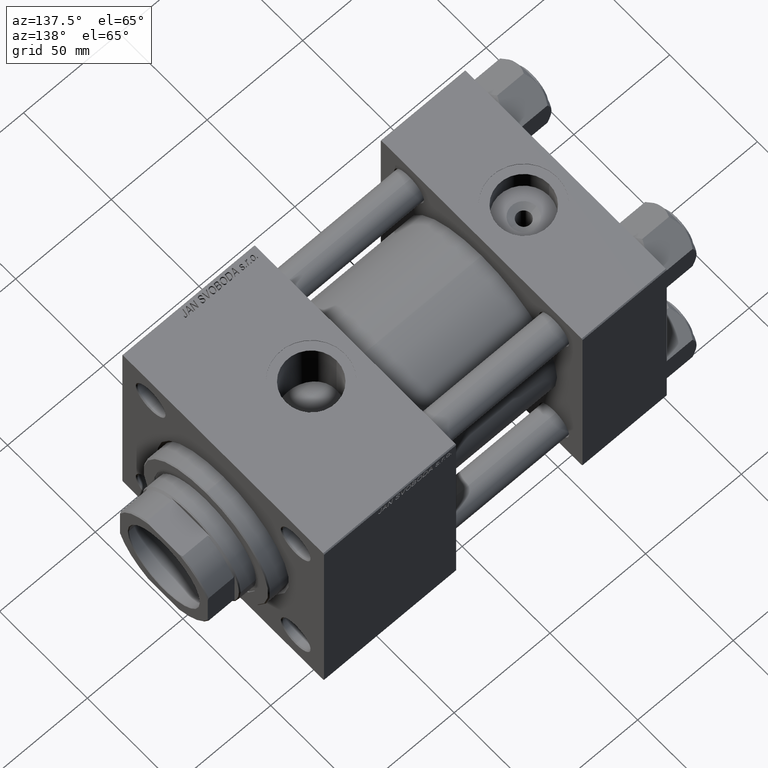
[diagram: clean part render]
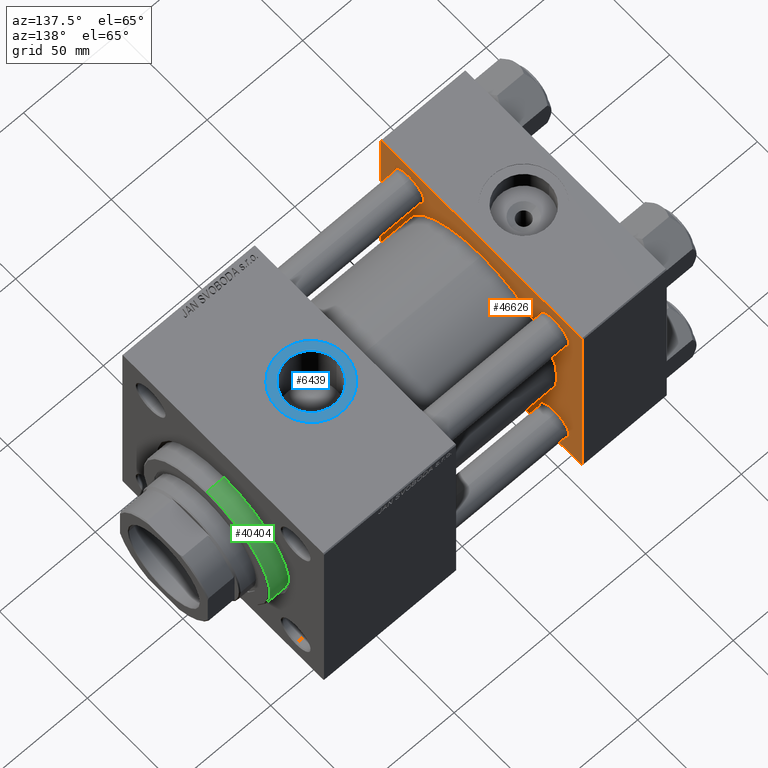
[diagram: same view with three faces highlighted in distinct colors, each labeled with its STEP entity id]
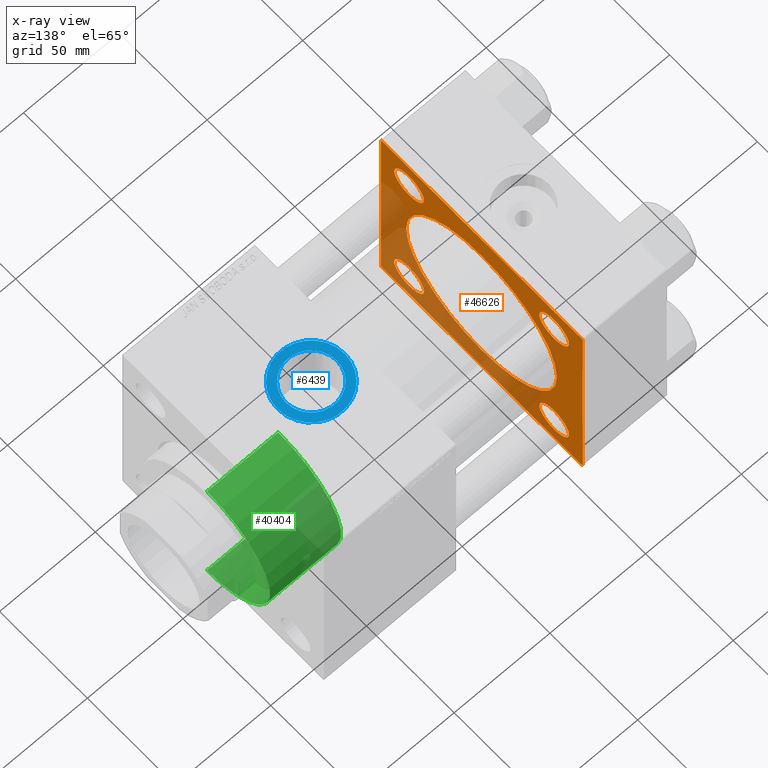
[diagram: x-ray of the same camera — body ghosted, the three highlighted faces saturated]
A machine part, auxiliary view with three faces highlighted in distinct colors.
The next image is the same camera in x-ray (body ghosted, the three faces saturated) — at least one of them is partly hidden behind the body in this view.
Their STEP definitions:

[orange] entity #46626 — the highlighted planar face has unit normal (-1, 0, 0).
#864 = CARTESIAN_POINT ( 'NONE',  ( 44.00000000000000000, 41.34999999999999432, 41.35000000000000142 ) ) ;
#981 = DIRECTION ( 'NONE',  ( -0.000000000000000000, -0.7071067811865376918, -0.7071067811865573427 ) ) ;
#1728 = EDGE_CURVE ( 'NONE', #43489, #13084, #11116, .T. ) ;
#2007 = CARTESIAN_POINT ( 'NONE',  ( 44.00000000000000000, -41.34999999999998721, 41.35000000000000853 ) ) ;
#2047 = EDGE_CURVE ( 'NONE', #15584, #39026, #29131, .T. ) ;
#2173 = CARTESIAN_POINT ( 'NONE',  ( 44.00000000000000000, -2.602085213965210642E-15, 0.000000000000000000 ) ) ;
#2218 = CARTESIAN_POINT ( 'NONE',  ( 44.00000000000000000, 57.00000000000000711, 57.50000000000000711 ) ) ;
#2276 = CARTESIAN_POINT ( 'NONE',  ( 44.00000000000000000, 41.34999999999999432, -49.85000000000003695 ) ) ;
#2841 = CIRCLE ( 'NONE', #23292, 8.500000000000035527 ) ;
#3265 = VERTEX_POINT ( 'NONE', #5364 ) ;
#3810 = CARTESIAN_POINT ( 'NONE',  ( 44.00000000000000000, -57.00000000000000711, -57.50000000000000711 ) ) ;
#4451 = AXIS2_PLACEMENT_3D ( 'NONE', #35761, #11442, #27077 ) ;
#4601 = AXIS2_PLACEMENT_3D ( 'NONE', #16011, #37011, #17047 ) ;
#4904 = VERTEX_POINT ( 'NONE', #9020 ) ;
#5169 = FACE_BOUND ( 'NONE', #38016, .T. ) ;
#5364 = CARTESIAN_POINT ( 'NONE',  ( 44.00000000000000000, -57.00000000000000711, -57.50000000000000711 ) ) ;
#5370 = DIRECTION ( 'NONE',  ( 0.000000000000000000, 0.000000000000000000, 1.000000000000000000 ) ) ;
#5606 = VECTOR ( 'NONE', #36279, 1000.000000000000000 ) ;
#5610 = LINE ( 'NONE', #6606, #38942 ) ;
#6256 = EDGE_CURVE ( 'NONE', #39026, #15584, #14413, .T. ) ;
#6276 = CARTESIAN_POINT ( 'NONE',  ( 44.00000000000000000, -2.602085213965210642E-15, 43.00000000000000000 ) ) ;
#6331 = ORIENTED_EDGE ( 'NONE', *, *, #21492, .T. ) ;
#6519 = CARTESIAN_POINT ( 'NONE',  ( 44.00000000000000000, -2.602085213965210642E-15, 0.000000000000000000 ) ) ;
#6606 = CARTESIAN_POINT ( 'NONE',  ( 44.00000000000000000, 57.49999999999999289, 57.50000000000000711 ) ) ;
#6639 = EDGE_LOOP ( 'NONE', ( #47139, #49872 ) ) ;
#7057 = AXIS2_PLACEMENT_3D ( 'NONE', #20769, #39961, #5370 ) ;
#7622 = CIRCLE ( 'NONE', #12541, 8.500000000000035527 ) ;
#8099 = CARTESIAN_POINT ( 'NONE',  ( 44.00000000000000000, -57.50000000000000711, -57.00000000000000711 ) ) ;
#8248 = CARTESIAN_POINT ( 'NONE',  ( 44.00000000000000000, 57.49999999999999289, -57.00000000000000711 ) ) ;
#8662 = LINE ( 'NONE', #36082, #11220 ) ;
#8666 = AXIS2_PLACEMENT_3D ( 'NONE', #2007, #45550, #18663 ) ;
#8771 = VECTOR ( 'NONE', #27089, 1000.000000000000114 ) ;
#8866 = LINE ( 'NONE', #36797, #5606 ) ;
#8880 = EDGE_CURVE ( 'NONE', #38811, #47978, #15281, .T. ) ;
#9020 = CARTESIAN_POINT ( 'NONE',  ( 44.00000000000000000, 57.49999999999999289, 57.00000000000003553 ) ) ;
#9110 = DIRECTION ( 'NONE',  ( -1.000000000000000000, 0.000000000000000000, -0.000000000000000000 ) ) ;
#9792 = VERTEX_POINT ( 'NONE', #47768 ) ;
#9857 = DIRECTION ( 'NONE',  ( 1.000000000000000000, -0.000000000000000000, 0.000000000000000000 ) ) ;
#11079 = AXIS2_PLACEMENT_3D ( 'NONE', #2173, #9857, #41864 ) ;
#11116 = CIRCLE ( 'NONE', #42989, 8.500000000000035527 ) ;
#11220 = VECTOR ( 'NONE', #981, 1000.000000000000114 ) ;
#11442 = DIRECTION ( 'NONE',  ( -1.000000000000000000, 0.000000000000000000, -0.000000000000000000 ) ) ;
#11452 = CARTESIAN_POINT ( 'NONE',  ( 44.00000000000000000, 57.49999999999999289, -57.00000000000000711 ) ) ;
#11497 = DIRECTION ( 'NONE',  ( 0.000000000000000000, 0.7071067811865474617, -0.7071067811865474617 ) ) ;
#12541 = AXIS2_PLACEMENT_3D ( 'NONE', #47132, #39457, #23847 ) ;
#12558 = EDGE_CURVE ( 'NONE', #9792, #25472, #8866, .T. ) ;
#12588 = EDGE_LOOP ( 'NONE', ( #42980, #37936, #13130, #32964, #40190, #16566, #28626, #25286 ) ) ;
#12591 = FACE_BOUND ( 'NONE', #30739, .T. ) ;
#12710 = ORIENTED_EDGE ( 'NONE', *, *, #6256, .T. ) ;
#12964 = VERTEX_POINT ( 'NONE', #19475 ) ;
#13084 = VERTEX_POINT ( 'NONE', #26593 ) ;
#13130 = ORIENTED_EDGE ( 'NONE', *, *, #28936, .F. ) ;
#14413 = CIRCLE ( 'NONE', #7057, 8.500000000000035527 ) ;
#14778 = CIRCLE ( 'NONE', #40956, 43.00000000000000000 ) ;
#15281 = CIRCLE ( 'NONE', #31658, 8.500000000000035527 ) ;
#15300 = LINE ( 'NONE', #11452, #8771 ) ;
#15584 = VERTEX_POINT ( 'NONE', #21655 ) ;
#16011 = CARTESIAN_POINT ( 'NONE',  ( 44.00000000000000000, -41.34999999999998721, -41.35000000000000853 ) ) ;
#16207 = CARTESIAN_POINT ( 'NONE',  ( 44.00000000000000000, 57.00000000000002132, -57.49999999999999289 ) ) ;
#16291 = EDGE_LOOP ( 'NONE', ( #50635, #44265 ) ) ;
#16566 = ORIENTED_EDGE ( 'NONE', *, *, #31245, .T. ) ;
#16843 = LINE ( 'NONE', #2218, #27674 ) ;
#16985 = CARTESIAN_POINT ( 'NONE',  ( 44.00000000000000000, 41.34999999999999432, 32.84999999999997300 ) ) ;
#17047 = DIRECTION ( 'NONE',  ( 0.000000000000000000, 0.000000000000000000, 1.000000000000000000 ) ) ;
#18391 = EDGE_CURVE ( 'NONE', #27219, #47088, #7622, .T. ) ;
#18663 = DIRECTION ( 'NONE',  ( 0.000000000000000000, 0.000000000000000000, 1.000000000000000000 ) ) ;
#18763 = LINE ( 'NONE', #34386, #49436 ) ;
#19475 = CARTESIAN_POINT ( 'NONE',  ( 44.00000000000000000, -57.00000000000003553, 57.49999999999999289 ) ) ;
#20312 = FACE_BOUND ( 'NONE', #16291, .T. ) ;
#20678 = DIRECTION ( 'NONE',  ( 0.000000000000000000, 0.000000000000000000, 1.000000000000000000 ) ) ;
#20769 = CARTESIAN_POINT ( 'NONE',  ( 44.00000000000000000, -41.34999999999998721, 41.35000000000000853 ) ) ;
#20814 = EDGE_CURVE ( 'NONE', #48911, #12964, #18763, .T. ) ;
#20918 = DIRECTION ( 'NONE',  ( 0.000000000000000000, 0.000000000000000000, 1.000000000000000000 ) ) ;
#21492 = EDGE_CURVE ( 'NONE', #47088, #27219, #31439, .T. ) ;
#21655 = CARTESIAN_POINT ( 'NONE',  ( 44.00000000000000000, -41.34999999999998721, 32.84999999999997300 ) ) ;
#21759 = DIRECTION ( 'NONE',  ( 0.000000000000000000, 0.000000000000000000, -1.000000000000000000 ) ) ;
#22021 = ORIENTED_EDGE ( 'NONE', *, *, #40906, .F. ) ;
#22176 = DIRECTION ( 'NONE',  ( 0.000000000000000000, 0.000000000000000000, 1.000000000000000000 ) ) ;
#22318 = CARTESIAN_POINT ( 'NONE',  ( 44.00000000000000000, -41.34999999999998721, -32.84999999999997300 ) ) ;
#22742 = VERTEX_POINT ( 'NONE', #8248 ) ;
#23292 = AXIS2_PLACEMENT_3D ( 'NONE', #44215, #40123, #20678 ) ;
#23444 = EDGE_CURVE ( 'NONE', #31858, #43066, #42946, .T. ) ;
#23633 = FACE_BOUND ( 'NONE', #46657, .T. ) ;
#23847 = DIRECTION ( 'NONE',  ( 0.000000000000000000, 0.000000000000000000, 1.000000000000000000 ) ) ;
#23875 = FACE_BOUND ( 'NONE', #6639, .T. ) ;
#25286 = ORIENTED_EDGE ( 'NONE', *, *, #41487, .T. ) ;
#25472 = VERTEX_POINT ( 'NONE', #8099 ) ;
#25899 = EDGE_CURVE ( 'NONE', #47978, #38811, #46316, .T. ) ;
#26593 = CARTESIAN_POINT ( 'NONE',  ( 44.00000000000000000, 41.34999999999999432, 49.85000000000003695 ) ) ;
#26734 = VECTOR ( 'NONE', #30636, 1000.000000000000000 ) ;
#27077 = DIRECTION ( 'NONE',  ( 0.000000000000000000, 0.000000000000000000, 1.000000000000000000 ) ) ;
#27089 = DIRECTION ( 'NONE',  ( -0.000000000000000000, 0.7071067811865376918, 0.7071067811865573427 ) ) ;
#27219 = VERTEX_POINT ( 'NONE', #38964 ) ;
#27376 = LINE ( 'NONE', #3810, #47504 ) ;
#27515 = DIRECTION ( 'NONE',  ( 0.000000000000000000, 0.000000000000000000, 1.000000000000000000 ) ) ;
#27674 = VECTOR ( 'NONE', #32969, 1000.000000000000114 ) ;
#28230 = PLANE ( 'NONE',  #34592 ) ;
#28490 = ORIENTED_EDGE ( 'NONE', *, *, #23444, .F. ) ;
#28626 = ORIENTED_EDGE ( 'NONE', *, *, #12558, .T. ) ;
#28936 = EDGE_CURVE ( 'NONE', #4904, #22742, #5610, .T. ) ;
#29131 = CIRCLE ( 'NONE', #8666, 8.500000000000035527 ) ;
#30214 = EDGE_CURVE ( 'NONE', #36861, #3265, #42153, .T. ) ;
#30636 = DIRECTION ( 'NONE',  ( 0.000000000000000000, -1.000000000000000000, -1.206764157201257045E-16 ) ) ;
#30703 = CARTESIAN_POINT ( 'NONE',  ( 44.00000000000000000, 2.663896022368408223E-15, -43.00000000000000000 ) ) ;
#30739 = EDGE_LOOP ( 'NONE', ( #46532, #12710 ) ) ;
#31245 = EDGE_CURVE ( 'NONE', #12964, #9792, #8662, .T. ) ;
#31439 = CIRCLE ( 'NONE', #4451, 8.500000000000035527 ) ;
#31658 = AXIS2_PLACEMENT_3D ( 'NONE', #44196, #9110, #20918 ) ;
#31858 = VERTEX_POINT ( 'NONE', #6276 ) ;
#32324 = FACE_OUTER_BOUND ( 'NONE', #12588, .T. ) ;
#32381 = EDGE_CURVE ( 'NONE', #36861, #22742, #15300, .T. ) ;
#32574 = CARTESIAN_POINT ( 'NONE',  ( 44.00000000000000000, -41.34999999999998721, -49.85000000000004405 ) ) ;
#32964 = ORIENTED_EDGE ( 'NONE', *, *, #34712, .T. ) ;
#32969 = DIRECTION ( 'NONE',  ( 0.000000000000000000, -0.7071067811865573427, 0.7071067811865376918 ) ) ;
#34075 = CARTESIAN_POINT ( 'NONE',  ( 44.00000000000000000, -41.34999999999998721, 49.85000000000004405 ) ) ;
#34386 = CARTESIAN_POINT ( 'NONE',  ( 44.00000000000000000, 57.49999999999999289, 57.50000000000000711 ) ) ;
#34592 = AXIS2_PLACEMENT_3D ( 'NONE', #39487, #47672, #43841 ) ;
#34683 = DIRECTION ( 'NONE',  ( 1.000000000000000000, -0.000000000000000000, 0.000000000000000000 ) ) ;
#34712 = EDGE_CURVE ( 'NONE', #4904, #48911, #16843, .T. ) ;
#35441 = DIRECTION ( 'NONE',  ( -1.000000000000000000, 0.000000000000000000, -0.000000000000000000 ) ) ;
#35761 = CARTESIAN_POINT ( 'NONE',  ( 44.00000000000000000, 41.34999999999999432, -41.35000000000000142 ) ) ;
#36082 = CARTESIAN_POINT ( 'NONE',  ( 44.00000000000000000, -57.50000000000000711, 57.00000000000000711 ) ) ;
#36279 = DIRECTION ( 'NONE',  ( 0.000000000000000000, 0.000000000000000000, -1.000000000000000000 ) ) ;
#36797 = CARTESIAN_POINT ( 'NONE',  ( 44.00000000000000000, -57.50000000000000711, 57.49999999999999289 ) ) ;
#36861 = VERTEX_POINT ( 'NONE', #16207 ) ;
#37011 = DIRECTION ( 'NONE',  ( -1.000000000000000000, 0.000000000000000000, -0.000000000000000000 ) ) ;
#37936 = ORIENTED_EDGE ( 'NONE', *, *, #32381, .T. ) ;
#38016 = EDGE_LOOP ( 'NONE', ( #6331, #47771 ) ) ;
#38158 = CARTESIAN_POINT ( 'NONE',  ( 44.00000000000000000, 57.00000000000000711, 57.50000000000000711 ) ) ;
#38811 = VERTEX_POINT ( 'NONE', #32574 ) ;
#38942 = VECTOR ( 'NONE', #21759, 1000.000000000000000 ) ;
#38964 = CARTESIAN_POINT ( 'NONE',  ( 44.00000000000000000, 41.34999999999999432, -32.84999999999997300 ) ) ;
#39026 = VERTEX_POINT ( 'NONE', #34075 ) ;
#39457 = DIRECTION ( 'NONE',  ( -1.000000000000000000, 0.000000000000000000, -0.000000000000000000 ) ) ;
#39487 = CARTESIAN_POINT ( 'NONE',  ( 44.00000000000000000, 0.000000000000000000, 0.000000000000000000 ) ) ;
#39961 = DIRECTION ( 'NONE',  ( -1.000000000000000000, 0.000000000000000000, -0.000000000000000000 ) ) ;
#40123 = DIRECTION ( 'NONE',  ( -1.000000000000000000, 0.000000000000000000, -0.000000000000000000 ) ) ;
#40190 = ORIENTED_EDGE ( 'NONE', *, *, #20814, .T. ) ;
#40906 = EDGE_CURVE ( 'NONE', #43066, #31858, #14778, .T. ) ;
#40956 = AXIS2_PLACEMENT_3D ( 'NONE', #6519, #34683, #22176 ) ;
#41487 = EDGE_CURVE ( 'NONE', #25472, #3265, #27376, .T. ) ;
#41864 = DIRECTION ( 'NONE',  ( 0.000000000000000000, 0.000000000000000000, 1.000000000000000000 ) ) ;
#42153 = LINE ( 'NONE', #50586, #26734 ) ;
#42796 = DIRECTION ( 'NONE',  ( 0.000000000000000000, -1.000000000000000000, -1.206764157201257045E-16 ) ) ;
#42946 = CIRCLE ( 'NONE', #11079, 43.00000000000000000 ) ;
#42980 = ORIENTED_EDGE ( 'NONE', *, *, #30214, .F. ) ;
#42989 = AXIS2_PLACEMENT_3D ( 'NONE', #864, #35441, #27515 ) ;
#43066 = VERTEX_POINT ( 'NONE', #30703 ) ;
#43489 = VERTEX_POINT ( 'NONE', #16985 ) ;
#43841 = DIRECTION ( 'NONE',  ( -0.000000000000000000, 0.000000000000000000, 1.000000000000000000 ) ) ;
#44196 = CARTESIAN_POINT ( 'NONE',  ( 44.00000000000000000, -41.34999999999998721, -41.35000000000000853 ) ) ;
#44215 = CARTESIAN_POINT ( 'NONE',  ( 44.00000000000000000, 41.34999999999999432, 41.35000000000000142 ) ) ;
#44265 = ORIENTED_EDGE ( 'NONE', *, *, #25899, .T. ) ;
#45550 = DIRECTION ( 'NONE',  ( -1.000000000000000000, 0.000000000000000000, -0.000000000000000000 ) ) ;
#46316 = CIRCLE ( 'NONE', #4601, 8.500000000000035527 ) ;
#46532 = ORIENTED_EDGE ( 'NONE', *, *, #2047, .T. ) ;
#46626 = ADVANCED_FACE ( 'NONE', ( #20312, #5169, #12591, #23875, #23633, #32324 ), #28230, .F. ) ;
#46657 = EDGE_LOOP ( 'NONE', ( #28490, #22021 ) ) ;
#47088 = VERTEX_POINT ( 'NONE', #2276 ) ;
#47132 = CARTESIAN_POINT ( 'NONE',  ( 44.00000000000000000, 41.34999999999999432, -41.35000000000000142 ) ) ;
#47139 = ORIENTED_EDGE ( 'NONE', *, *, #1728, .T. ) ;
#47504 = VECTOR ( 'NONE', #11497, 1000.000000000000114 ) ;
#47672 = DIRECTION ( 'NONE',  ( -1.000000000000000000, 0.000000000000000000, -0.000000000000000000 ) ) ;
#47768 = CARTESIAN_POINT ( 'NONE',  ( 44.00000000000000000, -57.50000000000000711, 57.00000000000000711 ) ) ;
#47771 = ORIENTED_EDGE ( 'NONE', *, *, #18391, .T. ) ;
#47978 = VERTEX_POINT ( 'NONE', #22318 ) ;
#48911 = VERTEX_POINT ( 'NONE', #38158 ) ;
#49436 = VECTOR ( 'NONE', #42796, 1000.000000000000000 ) ;
#49872 = ORIENTED_EDGE ( 'NONE', *, *, #50208, .T. ) ;
#50208 = EDGE_CURVE ( 'NONE', #13084, #43489, #2841, .T. ) ;
#50586 = CARTESIAN_POINT ( 'NONE',  ( 44.00000000000000000, 57.49999999999999289, -57.49999999999999289 ) ) ;
#50635 = ORIENTED_EDGE ( 'NONE', *, *, #8880, .T. ) ;

[blue] entity #6439 — the highlighted planar face has unit normal (0, 0, 1).
#519 = EDGE_LOOP ( 'NONE', ( #37803, #31713 ) ) ;
#1999 = DIRECTION ( 'NONE',  ( 1.000000000000000000, 0.000000000000000000, 0.000000000000000000 ) ) ;
#2626 = EDGE_CURVE ( 'NONE', #14921, #5724, #9471, .T. ) ;
#5427 = CIRCLE ( 'NONE', #50388, 17.50000000000001421 ) ;
#5724 = VERTEX_POINT ( 'NONE', #47746 ) ;
#6439 = ADVANCED_FACE ( 'NONE', ( #34537, #45816 ), #22522, .T. ) ;
#9471 = CIRCLE ( 'NONE', #24221, 13.22000000000000952 ) ;
#10973 = AXIS2_PLACEMENT_3D ( 'NONE', #45961, #31336, #19324 ) ;
#14921 = VERTEX_POINT ( 'NONE', #27473 ) ;
#15207 = AXIS2_PLACEMENT_3D ( 'NONE', #34786, #34041, #50147 ) ;
#17383 = CARTESIAN_POINT ( 'NONE',  ( 133.0000000000000000, -6.938893903907229955E-15, 57.30000000000000426 ) ) ;
#17779 = DIRECTION ( 'NONE',  ( -0.000000000000000000, -0.000000000000000000, -1.000000000000000000 ) ) ;
#18342 = CARTESIAN_POINT ( 'NONE',  ( 150.5000000000000284, -6.938893903907229955E-15, 57.30000000000000426 ) ) ;
#19324 = DIRECTION ( 'NONE',  ( 1.000000000000000000, 0.000000000000000000, 0.000000000000000000 ) ) ;
#20111 = VERTEX_POINT ( 'NONE', #33049 ) ;
#20424 = EDGE_CURVE ( 'NONE', #20111, #29299, #42833, .T. ) ;
#22522 = PLANE ( 'NONE',  #15207 ) ;
#22939 = CIRCLE ( 'NONE', #40915, 13.22000000000000952 ) ;
#23147 = CARTESIAN_POINT ( 'NONE',  ( 133.0000000000000000, -6.938893903907229955E-15, 57.30000000000000426 ) ) ;
#24221 = AXIS2_PLACEMENT_3D ( 'NONE', #49250, #17779, #29810 ) ;
#25241 = EDGE_CURVE ( 'NONE', #29299, #20111, #5427, .T. ) ;
#27473 = CARTESIAN_POINT ( 'NONE',  ( 119.7800000000000011, -6.938893903907229955E-15, 57.30000000000000426 ) ) ;
#28605 = ORIENTED_EDGE ( 'NONE', *, *, #20424, .T. ) ;
#28618 = EDGE_LOOP ( 'NONE', ( #30726, #28605 ) ) ;
#29299 = VERTEX_POINT ( 'NONE', #18342 ) ;
#29810 = DIRECTION ( 'NONE',  ( 1.000000000000000000, 0.000000000000000000, 0.000000000000000000 ) ) ;
#30726 = ORIENTED_EDGE ( 'NONE', *, *, #25241, .T. ) ;
#31336 = DIRECTION ( 'NONE',  ( 0.000000000000000000, 0.000000000000000000, 1.000000000000000000 ) ) ;
#31713 = ORIENTED_EDGE ( 'NONE', *, *, #39955, .T. ) ;
#33049 = CARTESIAN_POINT ( 'NONE',  ( 115.4999999999999858, -4.795762005399357763E-15, 57.30000000000000426 ) ) ;
#34041 = DIRECTION ( 'NONE',  ( 0.000000000000000000, 0.000000000000000000, 1.000000000000000000 ) ) ;
#34537 = FACE_BOUND ( 'NONE', #519, .T. ) ;
#34786 = CARTESIAN_POINT ( 'NONE',  ( 133.0000000000000000, -6.938893903907229955E-15, 57.30000000000000426 ) ) ;
#37104 = DIRECTION ( 'NONE',  ( 0.000000000000000000, 0.000000000000000000, 1.000000000000000000 ) ) ;
#37803 = ORIENTED_EDGE ( 'NONE', *, *, #2626, .T. ) ;
#39955 = EDGE_CURVE ( 'NONE', #5724, #14921, #22939, .T. ) ;
#40915 = AXIS2_PLACEMENT_3D ( 'NONE', #23147, #47188, #43101 ) ;
#42833 = CIRCLE ( 'NONE', #10973, 17.50000000000001421 ) ;
#43101 = DIRECTION ( 'NONE',  ( 1.000000000000000000, 0.000000000000000000, 0.000000000000000000 ) ) ;
#45816 = FACE_OUTER_BOUND ( 'NONE', #28618, .T. ) ;
#45961 = CARTESIAN_POINT ( 'NONE',  ( 133.0000000000000000, -6.938893903907229955E-15, 57.30000000000000426 ) ) ;
#47188 = DIRECTION ( 'NONE',  ( -0.000000000000000000, -0.000000000000000000, -1.000000000000000000 ) ) ;
#47746 = CARTESIAN_POINT ( 'NONE',  ( 146.2200000000000273, -5.319910835434427226E-15, 57.30000000000000426 ) ) ;
#49250 = CARTESIAN_POINT ( 'NONE',  ( 133.0000000000000000, -6.938893903907229955E-15, 57.30000000000000426 ) ) ;
#50147 = DIRECTION ( 'NONE',  ( 1.000000000000000000, 0.000000000000000000, -0.000000000000000000 ) ) ;
#50388 = AXIS2_PLACEMENT_3D ( 'NONE', #17383, #37104, #1999 ) ;

[green] entity #40404 — the highlighted cylindrical surface (partial cylindrical patch) has radius 36 mm, axis along (-1, -0, -0).
#882 = EDGE_CURVE ( 'NONE', #25884, #41175, #40527, .T. ) ;
#1506 = DIRECTION ( 'NONE',  ( 1.000000000000000000, 0.000000000000000000, 0.000000000000000000 ) ) ;
#2268 = VERTEX_POINT ( 'NONE', #27846 ) ;
#2685 = EDGE_LOOP ( 'NONE', ( #29218, #26875, #4010, #48487 ) ) ;
#4010 = ORIENTED_EDGE ( 'NONE', *, *, #19558, .T. ) ;
#6038 = CIRCLE ( 'NONE', #25687, 36.00000000000000000 ) ;
#8201 = AXIS2_PLACEMENT_3D ( 'NONE', #40476, #16927, #13322 ) ;
#9995 = CARTESIAN_POINT ( 'NONE',  ( 0.000000000000000000, 0.000000000000000000, 37.20000000000000284 ) ) ;
#12679 = EDGE_CURVE ( 'NONE', #25884, #29749, #34697, .T. ) ;
#13322 = DIRECTION ( 'NONE',  ( -1.000000000000000000, 0.000000000000000000, 0.000000000000000000 ) ) ;
#16927 = DIRECTION ( 'NONE',  ( -0.000000000000000000, -0.000000000000000000, -1.000000000000000000 ) ) ;
#19336 = DIRECTION ( 'NONE',  ( -0.000000000000000000, -0.000000000000000000, -1.000000000000000000 ) ) ;
#19558 = EDGE_CURVE ( 'NONE', #2268, #29749, #6038, .T. ) ;
#20536 = CYLINDRICAL_SURFACE ( 'NONE', #8201, 36.00000000000000000 ) ;
#24555 = DIRECTION ( 'NONE',  ( -0.000000000000000000, -0.000000000000000000, -1.000000000000000000 ) ) ;
#25002 = AXIS2_PLACEMENT_3D ( 'NONE', #9995, #25632, #41997 ) ;
#25632 = DIRECTION ( 'NONE',  ( 0.000000000000000000, 0.000000000000000000, -1.000000000000000000 ) ) ;
#25687 = AXIS2_PLACEMENT_3D ( 'NONE', #44277, #36607, #1506 ) ;
#25884 = VERTEX_POINT ( 'NONE', #35473 ) ;
#26467 = EDGE_CURVE ( 'NONE', #41175, #2268, #27871, .T. ) ;
#26875 = ORIENTED_EDGE ( 'NONE', *, *, #26467, .T. ) ;
#27693 = CARTESIAN_POINT ( 'NONE',  ( 36.00000000000000000, 4.408728476930470856E-15, 37.20000000000000284 ) ) ;
#27846 = CARTESIAN_POINT ( 'NONE',  ( 36.00000000000000000, 4.408728476930470856E-15, 0.000000000000000000 ) ) ;
#27871 = LINE ( 'NONE', #47567, #32461 ) ;
#29218 = ORIENTED_EDGE ( 'NONE', *, *, #882, .T. ) ;
#29749 = VERTEX_POINT ( 'NONE', #44296 ) ;
#32025 = FACE_OUTER_BOUND ( 'NONE', #2685, .T. ) ;
#32461 = VECTOR ( 'NONE', #24555, 1000.000000000000000 ) ;
#34697 = LINE ( 'NONE', #42379, #45707 ) ;
#35473 = CARTESIAN_POINT ( 'NONE',  ( -36.00000000000000000, 0.000000000000000000, 37.20000000000000284 ) ) ;
#36607 = DIRECTION ( 'NONE',  ( 0.000000000000000000, 0.000000000000000000, 1.000000000000000000 ) ) ;
#40404 = ADVANCED_FACE ( 'NONE', ( #32025 ), #20536, .T. ) ;
#40476 = CARTESIAN_POINT ( 'NONE',  ( 0.000000000000000000, 0.000000000000000000, 28.69999999999999929 ) ) ;
#40527 = CIRCLE ( 'NONE', #25002, 36.00000000000000000 ) ;
#41175 = VERTEX_POINT ( 'NONE', #27693 ) ;
#41997 = DIRECTION ( 'NONE',  ( 1.000000000000000000, 0.000000000000000000, 0.000000000000000000 ) ) ;
#42379 = CARTESIAN_POINT ( 'NONE',  ( -36.00000000000000000, 0.000000000000000000, 28.69999999999999929 ) ) ;
#44277 = CARTESIAN_POINT ( 'NONE',  ( 0.000000000000000000, 0.000000000000000000, 0.000000000000000000 ) ) ;
#44296 = CARTESIAN_POINT ( 'NONE',  ( -36.00000000000000000, 0.000000000000000000, 0.000000000000000000 ) ) ;
#45707 = VECTOR ( 'NONE', #19336, 1000.000000000000000 ) ;
#47567 = CARTESIAN_POINT ( 'NONE',  ( 36.00000000000000000, 4.408728476930470856E-15, 28.69999999999999929 ) ) ;
#48487 = ORIENTED_EDGE ( 'NONE', *, *, #12679, .F. ) ;